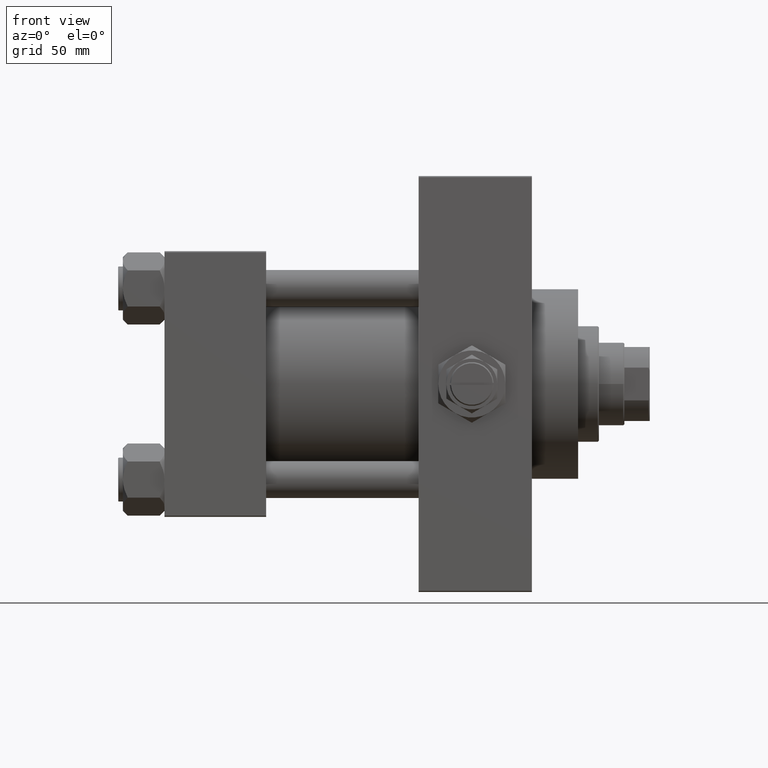
[diagram: clean part render]
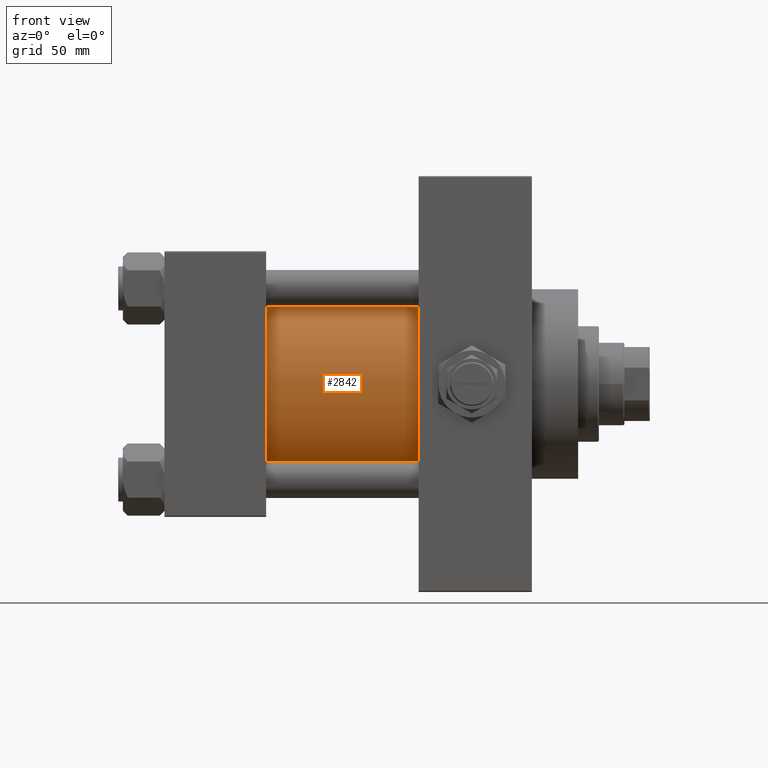
[diagram: same view with one face highlighted and labeled with its STEP entity id]
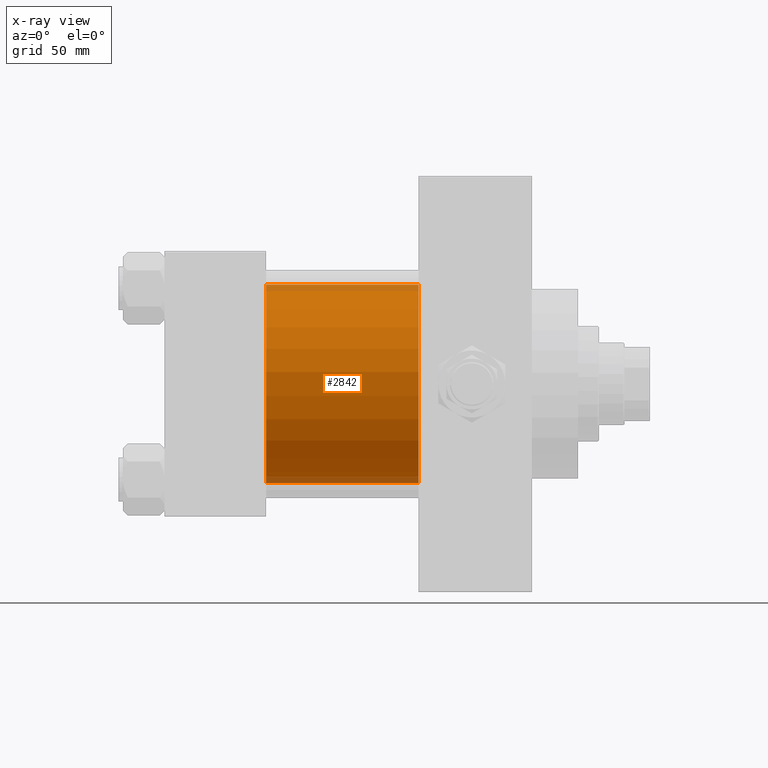
[diagram: x-ray of the same camera — body ghosted, the highlighted face saturated]
A machine part, front view. The second image highlights one B-rep face of the part: STEP entity #2842.
The next image is the same camera in x-ray: the body ghosted, the highlighted face saturated — about 7% of this face is hidden behind the body in this view.
In plain terms, the highlighted cylindrical surface (partial cylindrical patch) has radius 43 mm, axis along (-1, -0, -0).
Its self-contained STEP definition (entity closure, byte-faithful):
#1376 = CARTESIAN_POINT ( 'NONE',  ( 110.0000000000000000, -2.602085213965210642E-15, 0.000000000000000000 ) ) ;
#2842 = ADVANCED_FACE ( 'NONE', ( #15136 ), #34643, .T. ) ;
#3606 = DIRECTION ( 'NONE',  ( -1.000000000000000000, -0.000000000000000000, -0.000000000000000000 ) ) ;
#4102 = DIRECTION ( 'NONE',  ( 0.000000000000000000, 0.000000000000000000, 1.000000000000000000 ) ) ;
#4339 = CARTESIAN_POINT ( 'NONE',  ( 44.00000000000000000, -2.602085213965210642E-15, 0.000000000000000000 ) ) ;
#5036 = VERTEX_POINT ( 'NONE', #41203 ) ;
#6882 = AXIS2_PLACEMENT_3D ( 'NONE', #42634, #8359, #45649 ) ;
#7595 = CARTESIAN_POINT ( 'NONE',  ( 110.0000000000000000, 2.663896022368408223E-15, -43.00000000000000000 ) ) ;
#8359 = DIRECTION ( 'NONE',  ( -1.000000000000000000, -0.000000000000000000, -0.000000000000000000 ) ) ;
#9162 = ORIENTED_EDGE ( 'NONE', *, *, #21306, .T. ) ;
#9360 = DIRECTION ( 'NONE',  ( 0.000000000000000000, 0.000000000000000000, -1.000000000000000000 ) ) ;
#11093 = AXIS2_PLACEMENT_3D ( 'NONE', #4339, #19834, #4102 ) ;
#13108 = VECTOR ( 'NONE', #3606, 1000.000000000000000 ) ;
#13836 = VERTEX_POINT ( 'NONE', #17709 ) ;
#14953 = DIRECTION ( 'NONE',  ( -1.000000000000000000, -0.000000000000000000, -0.000000000000000000 ) ) ;
#15136 = FACE_OUTER_BOUND ( 'NONE', #31445, .T. ) ;
#17709 = CARTESIAN_POINT ( 'NONE',  ( 44.00000000000000000, -2.602085213965210642E-15, 43.00000000000000000 ) ) ;
#17791 = EDGE_CURVE ( 'NONE', #24500, #20411, #18933, .T. ) ;
#18002 = ORIENTED_EDGE ( 'NONE', *, *, #23261, .T. ) ;
#18364 = CARTESIAN_POINT ( 'NONE',  ( 110.0000000000000000, 2.663896022368408223E-15, -43.00000000000000000 ) ) ;
#18933 = CIRCLE ( 'NONE', #42886, 43.00000000000000000 ) ;
#19298 = CARTESIAN_POINT ( 'NONE',  ( 110.0000000000000000, -2.602085213965210642E-15, 43.00000000000000000 ) ) ;
#19834 = DIRECTION ( 'NONE',  ( 1.000000000000000000, -0.000000000000000000, 0.000000000000000000 ) ) ;
#19862 = ORIENTED_EDGE ( 'NONE', *, *, #40864, .F. ) ;
#20411 = VERTEX_POINT ( 'NONE', #18364 ) ;
#20672 = ORIENTED_EDGE ( 'NONE', *, *, #17791, .F. ) ;
#21306 = EDGE_CURVE ( 'NONE', #13836, #5036, #42210, .T. ) ;
#22714 = CARTESIAN_POINT ( 'NONE',  ( 110.0000000000000000, -2.602085213965210642E-15, 43.00000000000000000 ) ) ;
#23261 = EDGE_CURVE ( 'NONE', #24500, #13836, #26706, .T. ) ;
#24500 = VERTEX_POINT ( 'NONE', #19298 ) ;
#26706 = LINE ( 'NONE', #22714, #29506 ) ;
#29506 = VECTOR ( 'NONE', #14953, 1000.000000000000000 ) ;
#31445 = EDGE_LOOP ( 'NONE', ( #19862, #20672, #18002, #9162 ) ) ;
#34643 = CYLINDRICAL_SURFACE ( 'NONE', #6882, 43.00000000000000000 ) ;
#36402 = LINE ( 'NONE', #7595, #13108 ) ;
#40864 = EDGE_CURVE ( 'NONE', #20411, #5036, #36402, .T. ) ;
#41203 = CARTESIAN_POINT ( 'NONE',  ( 44.00000000000000000, 2.663896022368408223E-15, -43.00000000000000000 ) ) ;
#42210 = CIRCLE ( 'NONE', #11093, 43.00000000000000000 ) ;
#42634 = CARTESIAN_POINT ( 'NONE',  ( 110.0000000000000000, -2.602085213965210642E-15, 0.000000000000000000 ) ) ;
#42886 = AXIS2_PLACEMENT_3D ( 'NONE', #1376, #43391, #9360 ) ;
#43391 = DIRECTION ( 'NONE',  ( 1.000000000000000000, 0.000000000000000000, 0.000000000000000000 ) ) ;
#45649 = DIRECTION ( 'NONE',  ( 0.000000000000000000, 0.000000000000000000, 1.000000000000000000 ) ) ;